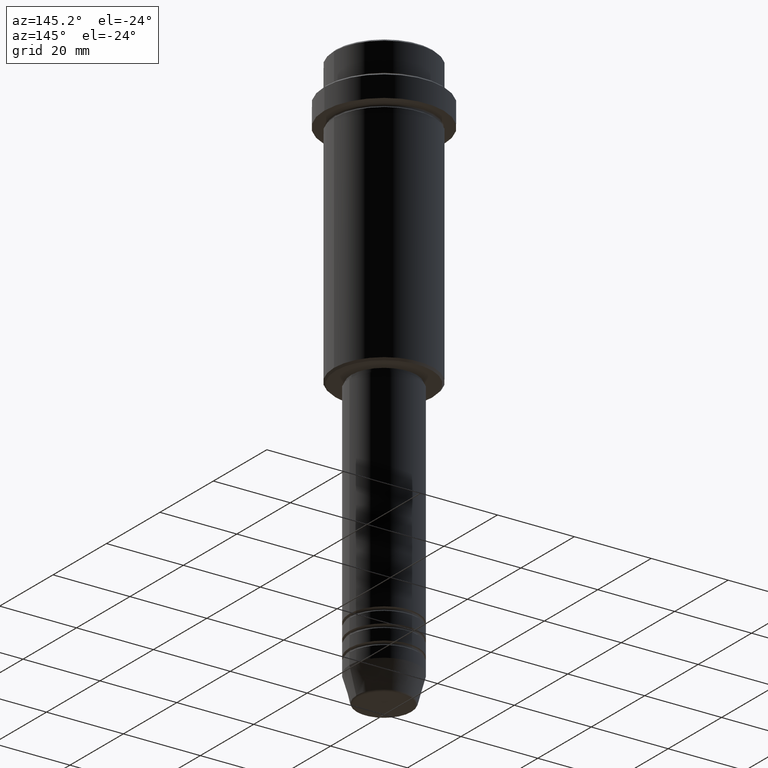
[diagram: clean part render]
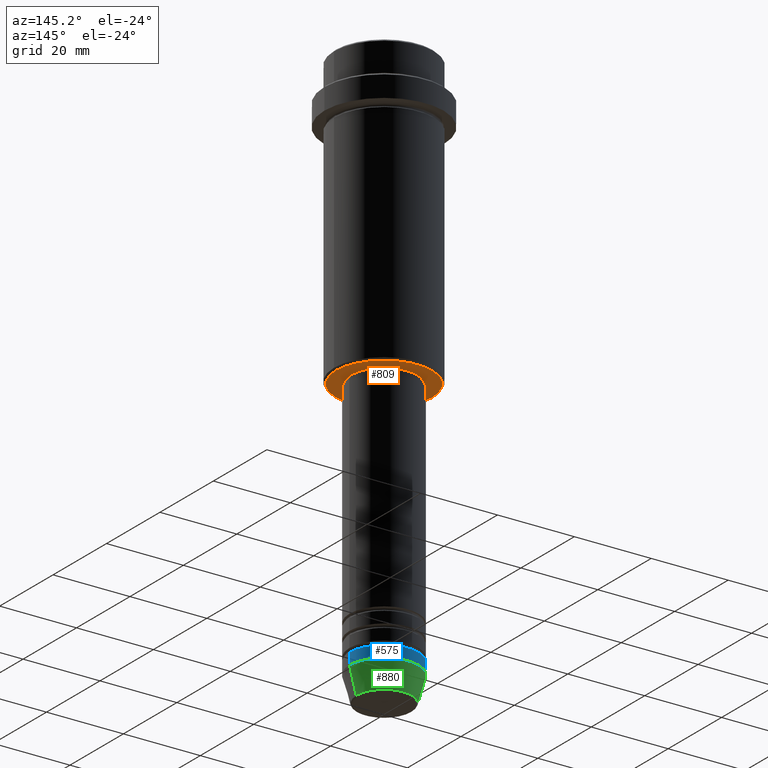
[diagram: same view with three faces highlighted in distinct colors, each labeled with its STEP entity id]
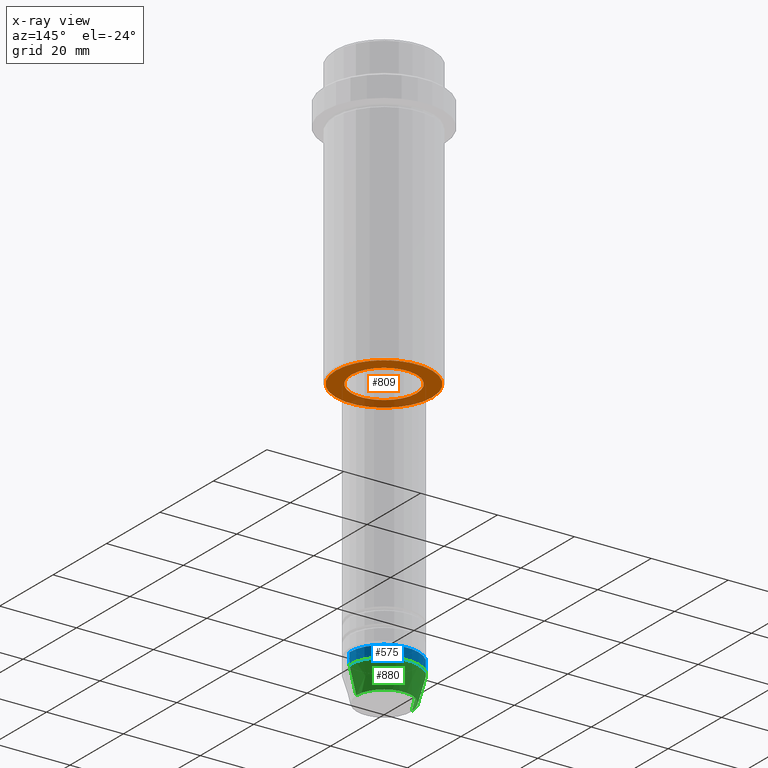
[diagram: x-ray of the same camera — body ghosted, the three highlighted faces saturated]
A machine part, auxiliary view with three faces highlighted in distinct colors.
The next image is the same camera in x-ray (body ghosted, the three faces saturated) — at least one of them is partly hidden behind the body in this view.
Their STEP definitions:

[orange] entity #809 — the highlighted planar face has unit normal (0, 0, -1).
#4 = CIRCLE ( 'NONE', #1291, 12.49999999999996980 ) ;
#45 = CIRCLE ( 'NONE', #1222, 12.49999999999996980 ) ;
#50 = DIRECTION ( 'NONE',  ( 1.000000000000000000, 0.000000000000000000, 0.000000000000000000 ) ) ;
#94 = AXIS2_PLACEMENT_3D ( 'NONE', #1231, #244, #1123 ) ;
#95 = ORIENTED_EDGE ( 'NONE', *, *, #578, .T. ) ;
#96 = DIRECTION ( 'NONE',  ( -1.000000000000000000, 0.000000000000000000, 0.000000000000000000 ) ) ;
#108 = PLANE ( 'NONE',  #1087 ) ;
#145 = ORIENTED_EDGE ( 'NONE', *, *, #358, .T. ) ;
#181 = EDGE_CURVE ( 'NONE', #960, #729, #443, .T. ) ;
#244 = DIRECTION ( 'NONE',  ( -0.000000000000000000, -0.000000000000000000, 1.000000000000000000 ) ) ;
#294 = DIRECTION ( 'NONE',  ( 0.000000000000000000, 0.000000000000000000, -1.000000000000000000 ) ) ;
#358 = EDGE_CURVE ( 'NONE', #1280, #948, #45, .T. ) ;
#443 = CIRCLE ( 'NONE', #919, 8.499999999999994671 ) ;
#532 = CIRCLE ( 'NONE', #94, 8.499999999999994671 ) ;
#558 = CARTESIAN_POINT ( 'NONE',  ( -12.49999999999996980, 1.561424668912873336E-15, -75.00000000000000000 ) ) ;
#578 = EDGE_CURVE ( 'NONE', #729, #960, #532, .T. ) ;
#583 = CARTESIAN_POINT ( 'NONE',  ( 0.000000000000000000, 0.000000000000000000, -75.00000000000000000 ) ) ;
#634 = DIRECTION ( 'NONE',  ( -1.000000000000000000, 0.000000000000000000, -0.000000000000000000 ) ) ;
#650 = DIRECTION ( 'NONE',  ( 0.000000000000000000, 0.000000000000000000, -1.000000000000000000 ) ) ;
#676 = EDGE_LOOP ( 'NONE', ( #145, #1137 ) ) ;
#729 = VERTEX_POINT ( 'NONE', #1274 ) ;
#795 = CARTESIAN_POINT ( 'NONE',  ( -8.499999999999994671, 1.040949779275249745E-15, -75.00000000000000000 ) ) ;
#809 = ADVANCED_FACE ( 'NONE', ( #881, #1296 ), #108, .T. ) ;
#859 = ORIENTED_EDGE ( 'NONE', *, *, #181, .T. ) ;
#872 = CARTESIAN_POINT ( 'NONE',  ( 12.49999999999996980, 0.000000000000000000, -75.00000000000000000 ) ) ;
#881 = FACE_OUTER_BOUND ( 'NONE', #676, .T. ) ;
#919 = AXIS2_PLACEMENT_3D ( 'NONE', #583, #1235, #50 ) ;
#948 = VERTEX_POINT ( 'NONE', #558 ) ;
#960 = VERTEX_POINT ( 'NONE', #795 ) ;
#981 = EDGE_LOOP ( 'NONE', ( #95, #859 ) ) ;
#1034 = CARTESIAN_POINT ( 'NONE',  ( 0.000000000000000000, 0.000000000000000000, -75.00000000000000000 ) ) ;
#1066 = DIRECTION ( 'NONE',  ( -1.000000000000000000, 0.000000000000000000, 0.000000000000000000 ) ) ;
#1087 = AXIS2_PLACEMENT_3D ( 'NONE', #1319, #650, #634 ) ;
#1123 = DIRECTION ( 'NONE',  ( 1.000000000000000000, 0.000000000000000000, 0.000000000000000000 ) ) ;
#1137 = ORIENTED_EDGE ( 'NONE', *, *, #1186, .T. ) ;
#1186 = EDGE_CURVE ( 'NONE', #948, #1280, #4, .T. ) ;
#1222 = AXIS2_PLACEMENT_3D ( 'NONE', #1276, #294, #96 ) ;
#1231 = CARTESIAN_POINT ( 'NONE',  ( 0.000000000000000000, 0.000000000000000000, -75.00000000000000000 ) ) ;
#1235 = DIRECTION ( 'NONE',  ( -0.000000000000000000, -0.000000000000000000, 1.000000000000000000 ) ) ;
#1274 = CARTESIAN_POINT ( 'NONE',  ( 8.499999999999994671, 0.000000000000000000, -75.00000000000000000 ) ) ;
#1276 = CARTESIAN_POINT ( 'NONE',  ( 0.000000000000000000, 0.000000000000000000, -75.00000000000000000 ) ) ;
#1280 = VERTEX_POINT ( 'NONE', #872 ) ;
#1281 = DIRECTION ( 'NONE',  ( 0.000000000000000000, 0.000000000000000000, -1.000000000000000000 ) ) ;
#1291 = AXIS2_PLACEMENT_3D ( 'NONE', #1034, #1281, #1066 ) ;
#1296 = FACE_BOUND ( 'NONE', #981, .T. ) ;
#1319 = CARTESIAN_POINT ( 'NONE',  ( 0.000000000000000000, 13.00000000000000000, -75.00000000000000000 ) ) ;

[blue] entity #575 — the highlighted cylindrical surface (partial cylindrical patch) has radius 9 mm, axis along (-0, -0, 1).
#20 = DIRECTION ( 'NONE',  ( 1.000000000000000000, 0.000000000000000000, 0.000000000000000000 ) ) ;
#99 = ORIENTED_EDGE ( 'NONE', *, *, #1414, .F. ) ;
#161 = CARTESIAN_POINT ( 'NONE',  ( -9.000000000000000000, 1.102182119232617714E-15, -139.9999999999999716 ) ) ;
#166 = AXIS2_PLACEMENT_3D ( 'NONE', #781, #438, #20 ) ;
#187 = DIRECTION ( 'NONE',  ( -0.000000000000000000, -0.000000000000000000, 1.000000000000000000 ) ) ;
#252 = DIRECTION ( 'NONE',  ( -0.000000000000000000, -0.000000000000000000, 1.000000000000000000 ) ) ;
#262 = VERTEX_POINT ( 'NONE', #161 ) ;
#270 = VERTEX_POINT ( 'NONE', #1399 ) ;
#298 = LINE ( 'NONE', #1167, #1174 ) ;
#359 = DIRECTION ( 'NONE',  ( 1.000000000000000000, 0.000000000000000000, 0.000000000000000000 ) ) ;
#438 = DIRECTION ( 'NONE',  ( -0.000000000000000000, -0.000000000000000000, 1.000000000000000000 ) ) ;
#439 = ORIENTED_EDGE ( 'NONE', *, *, #1009, .T. ) ;
#534 = CIRCLE ( 'NONE', #884, 9.000000000000000000 ) ;
#539 = EDGE_CURVE ( 'NONE', #1164, #262, #787, .T. ) ;
#566 = CARTESIAN_POINT ( 'NONE',  ( 0.000000000000000000, 0.000000000000000000, 0.000000000000000000 ) ) ;
#575 = ADVANCED_FACE ( 'NONE', ( #875 ), #1316, .T. ) ;
#580 = ORIENTED_EDGE ( 'NONE', *, *, #539, .F. ) ;
#668 = DIRECTION ( 'NONE',  ( -0.000000000000000000, -0.000000000000000000, 1.000000000000000000 ) ) ;
#713 = VECTOR ( 'NONE', #252, 1000.000000000000000 ) ;
#714 = AXIS2_PLACEMENT_3D ( 'NONE', #566, #668, #359 ) ;
#751 = EDGE_CURVE ( 'NONE', #870, #262, #298, .T. ) ;
#781 = CARTESIAN_POINT ( 'NONE',  ( 0.000000000000000000, 0.000000000000000000, -139.9999999999999716 ) ) ;
#787 = CIRCLE ( 'NONE', #166, 9.000000000000000000 ) ;
#870 = VERTEX_POINT ( 'NONE', #1191 ) ;
#875 = FACE_OUTER_BOUND ( 'NONE', #1060, .T. ) ;
#884 = AXIS2_PLACEMENT_3D ( 'NONE', #910, #1022, #1339 ) ;
#887 = CARTESIAN_POINT ( 'NONE',  ( 9.000000000000000000, 0.000000000000000000, 0.000000000000000000 ) ) ;
#909 = LINE ( 'NONE', #887, #713 ) ;
#910 = CARTESIAN_POINT ( 'NONE',  ( 0.000000000000000000, 0.000000000000000000, -143.0000000000000000 ) ) ;
#937 = CARTESIAN_POINT ( 'NONE',  ( 9.000000000000000000, 0.000000000000000000, -139.9999999999999716 ) ) ;
#1009 = EDGE_CURVE ( 'NONE', #270, #870, #534, .T. ) ;
#1022 = DIRECTION ( 'NONE',  ( -0.000000000000000000, -0.000000000000000000, 1.000000000000000000 ) ) ;
#1060 = EDGE_LOOP ( 'NONE', ( #439, #1162, #580, #99 ) ) ;
#1162 = ORIENTED_EDGE ( 'NONE', *, *, #751, .T. ) ;
#1164 = VERTEX_POINT ( 'NONE', #937 ) ;
#1167 = CARTESIAN_POINT ( 'NONE',  ( -9.000000000000000000, 1.102182119232617714E-15, 0.000000000000000000 ) ) ;
#1174 = VECTOR ( 'NONE', #187, 1000.000000000000000 ) ;
#1191 = CARTESIAN_POINT ( 'NONE',  ( -9.000000000000000000, 1.102182119232617714E-15, -143.0000000000000000 ) ) ;
#1316 = CYLINDRICAL_SURFACE ( 'NONE', #714, 9.000000000000000000 ) ;
#1339 = DIRECTION ( 'NONE',  ( 1.000000000000000000, 0.000000000000000000, 0.000000000000000000 ) ) ;
#1399 = CARTESIAN_POINT ( 'NONE',  ( 9.000000000000000000, 0.000000000000000000, -143.0000000000000000 ) ) ;
#1414 = EDGE_CURVE ( 'NONE', #270, #1164, #909, .T. ) ;

[green] entity #880 — the highlighted conical surface has half-angle 15 deg.
#72 = EDGE_CURVE ( 'NONE', #865, #270, #1010, .T. ) ;
#73 = AXIS2_PLACEMENT_3D ( 'NONE', #1301, #1178, #979 ) ;
#125 = VERTEX_POINT ( 'NONE', #219 ) ;
#195 = LINE ( 'NONE', #866, #996 ) ;
#219 = CARTESIAN_POINT ( 'NONE',  ( -7.223655072137189492, 9.934123627281765110E-16, -149.6294095225512706 ) ) ;
#224 = DIRECTION ( 'NONE',  ( 0.2588190451025213501, 0.000000000000000000, 0.9659258262890680902 ) ) ;
#270 = VERTEX_POINT ( 'NONE', #1399 ) ;
#296 = EDGE_LOOP ( 'NONE', ( #506, #822, #1074, #1355 ) ) ;
#367 = VECTOR ( 'NONE', #224, 1000.000000000000000 ) ;
#466 = CARTESIAN_POINT ( 'NONE',  ( 9.000000000000000000, 0.000000000000000000, -143.0000000000000000 ) ) ;
#506 = ORIENTED_EDGE ( 'NONE', *, *, #602, .T. ) ;
#534 = CIRCLE ( 'NONE', #884, 9.000000000000000000 ) ;
#548 = CARTESIAN_POINT ( 'NONE',  ( 7.223655072137188604, 0.000000000000000000, -149.6294095225512706 ) ) ;
#602 = EDGE_CURVE ( 'NONE', #865, #125, #995, .T. ) ;
#788 = AXIS2_PLACEMENT_3D ( 'NONE', #1364, #1048, #1388 ) ;
#822 = ORIENTED_EDGE ( 'NONE', *, *, #1244, .T. ) ;
#865 = VERTEX_POINT ( 'NONE', #548 ) ;
#866 = CARTESIAN_POINT ( 'NONE',  ( -9.000000000000000000, 1.102182119232617714E-15, -143.0000000000000000 ) ) ;
#870 = VERTEX_POINT ( 'NONE', #1191 ) ;
#880 = ADVANCED_FACE ( 'NONE', ( #889 ), #1375, .T. ) ;
#884 = AXIS2_PLACEMENT_3D ( 'NONE', #910, #1022, #1339 ) ;
#889 = FACE_OUTER_BOUND ( 'NONE', #296, .T. ) ;
#910 = CARTESIAN_POINT ( 'NONE',  ( 0.000000000000000000, 0.000000000000000000, -143.0000000000000000 ) ) ;
#979 = DIRECTION ( 'NONE',  ( 1.000000000000000000, 0.000000000000000000, 0.000000000000000000 ) ) ;
#995 = CIRCLE ( 'NONE', #788, 7.223655072137188604 ) ;
#996 = VECTOR ( 'NONE', #1300, 1000.000000000000000 ) ;
#1009 = EDGE_CURVE ( 'NONE', #270, #870, #534, .T. ) ;
#1010 = LINE ( 'NONE', #466, #367 ) ;
#1022 = DIRECTION ( 'NONE',  ( -0.000000000000000000, -0.000000000000000000, 1.000000000000000000 ) ) ;
#1048 = DIRECTION ( 'NONE',  ( -0.000000000000000000, -0.000000000000000000, 1.000000000000000000 ) ) ;
#1074 = ORIENTED_EDGE ( 'NONE', *, *, #1009, .F. ) ;
#1178 = DIRECTION ( 'NONE',  ( -0.000000000000000000, -0.000000000000000000, 1.000000000000000000 ) ) ;
#1191 = CARTESIAN_POINT ( 'NONE',  ( -9.000000000000000000, 1.102182119232617714E-15, -143.0000000000000000 ) ) ;
#1244 = EDGE_CURVE ( 'NONE', #125, #870, #195, .T. ) ;
#1300 = DIRECTION ( 'NONE',  ( -0.2588190451025213501, 3.169619151431772337E-17, 0.9659258262890680902 ) ) ;
#1301 = CARTESIAN_POINT ( 'NONE',  ( 0.000000000000000000, 0.000000000000000000, -143.0000000000000000 ) ) ;
#1339 = DIRECTION ( 'NONE',  ( 1.000000000000000000, 0.000000000000000000, 0.000000000000000000 ) ) ;
#1355 = ORIENTED_EDGE ( 'NONE', *, *, #72, .F. ) ;
#1364 = CARTESIAN_POINT ( 'NONE',  ( 0.000000000000000000, 0.000000000000000000, -149.6294095225512706 ) ) ;
#1375 = CONICAL_SURFACE ( 'NONE', #73, 9.000000000000000000, 0.2617993877991500740 ) ;
#1388 = DIRECTION ( 'NONE',  ( 1.000000000000000000, 0.000000000000000000, 0.000000000000000000 ) ) ;
#1399 = CARTESIAN_POINT ( 'NONE',  ( 9.000000000000000000, 0.000000000000000000, -143.0000000000000000 ) ) ;